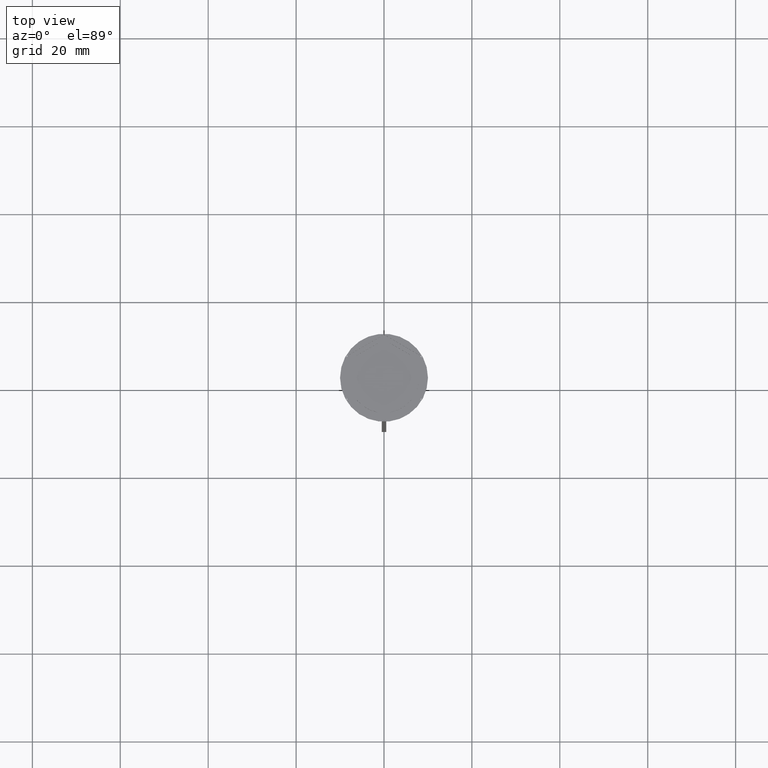
[diagram: clean part render]
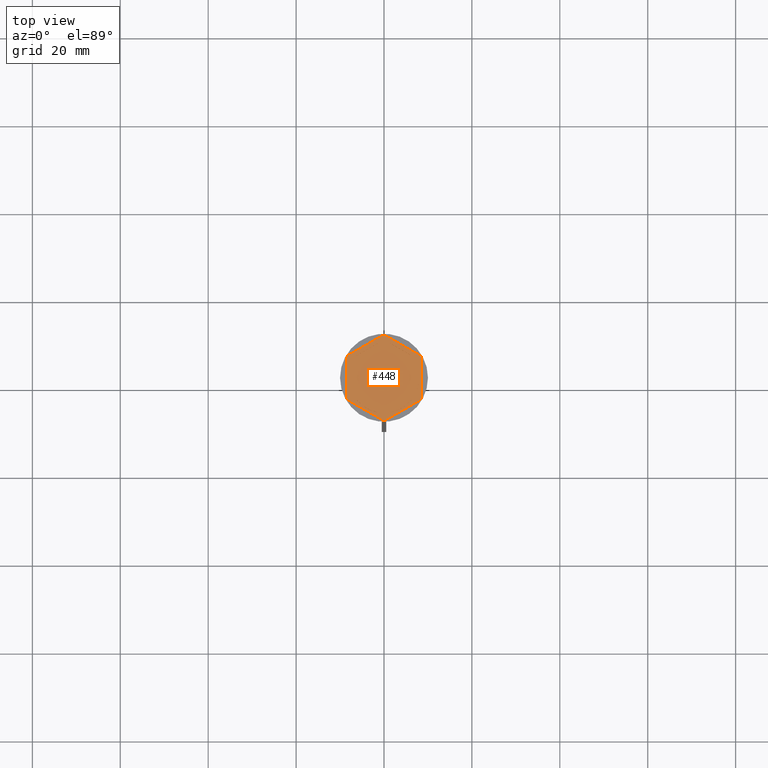
[diagram: same view with one face highlighted and labeled with its STEP entity id]
A machine part, top view. The second image highlights one B-rep face of the part: STEP entity #448.
In plain terms, the highlighted planar face has unit normal (0, 0, 1).
Its self-contained STEP definition (entity closure, byte-faithful):
#18 = ORIENTED_EDGE ( 'NONE', *, *, #1645, .F. ) ;
#22 = DIRECTION ( 'NONE',  ( 1.000000000000000000, 2.486899575160350651E-14, 0.000000000000000000 ) ) ;
#33 = CARTESIAN_POINT ( 'NONE',  ( 0.000000000000000000, 0.000000000000000000, -1.000000000000000000 ) ) ;
#50 = VECTOR ( 'NONE', #1621, 1000.000000000000114 ) ;
#53 = VECTOR ( 'NONE', #269, 1000.000000000000000 ) ;
#54 = VECTOR ( 'NONE', #1837, 1000.000000000000000 ) ;
#63 = VERTEX_POINT ( 'NONE', #198 ) ;
#64 = DIRECTION ( 'NONE',  ( -0.000000000000000000, -0.000000000000000000, -1.000000000000000000 ) ) ;
#91 = VECTOR ( 'NONE', #1137, 1000.000000000000000 ) ;
#100 = CARTESIAN_POINT ( 'NONE',  ( 0.000000000000000000, 0.000000000000000000, -1.000000000000000000 ) ) ;
#128 = AXIS2_PLACEMENT_3D ( 'NONE', #2612, #956, #1153 ) ;
#129 = LINE ( 'NONE', #1378, #1308 ) ;
#135 = VERTEX_POINT ( 'NONE', #916 ) ;
#146 = CARTESIAN_POINT ( 'NONE',  ( 0.000000000000000000, 0.000000000000000000, -1.000000000000000000 ) ) ;
#154 = CARTESIAN_POINT ( 'NONE',  ( 0.000000000000000000, 0.000000000000000000, -1.000000000000000000 ) ) ;
#159 = EDGE_CURVE ( 'NONE', #582, #413, #2114, .T. ) ;
#168 = LINE ( 'NONE', #1063, #2597 ) ;
#169 = CIRCLE ( 'NONE', #875, 8.000000000000000000 ) ;
#173 = DIRECTION ( 'NONE',  ( -2.003086131649545704E-16, -1.000000000000000000, 0.000000000000000000 ) ) ;
#180 = CARTESIAN_POINT ( 'NONE',  ( 6.160912690248237844, 5.103249437675785316, -1.000000000000000888 ) ) ;
#194 = FACE_OUTER_BOUND ( 'NONE', #580, .T. ) ;
#198 = CARTESIAN_POINT ( 'NONE',  ( 8.500000000000000000, -4.673328578219146934, -1.000000000000000000 ) ) ;
#226 = DIRECTION ( 'NONE',  ( -0.8660254037844387076, -0.4999999999999997780, 0.000000000000000000 ) ) ;
#230 = CARTESIAN_POINT ( 'NONE',  ( 7.500000000000000000, -4.330127018922195425, -1.000000000000000888 ) ) ;
#240 = CARTESIAN_POINT ( 'NONE',  ( -8.000000000000000000, 0.000000000000000000, -1.000000000000000000 ) ) ;
#269 = DIRECTION ( 'NONE',  ( 0.000000000000000000, -1.000000000000000000, 0.000000000000000000 ) ) ;
#274 = CARTESIAN_POINT ( 'NONE',  ( -8.500000000000000000, 4.673328578219146934, -1.000000000000000000 ) ) ;
#285 = EDGE_CURVE ( 'NONE', #509, #946, #129, .T. ) ;
#286 = DIRECTION ( 'NONE',  ( 0.000000000000000000, 0.000000000000000000, 1.000000000000000000 ) ) ;
#288 = VERTEX_POINT ( 'NONE', #550 ) ;
#297 = ORIENTED_EDGE ( 'NONE', *, *, #319, .F. ) ;
#308 = DIRECTION ( 'NONE',  ( 1.000000000000000000, 0.000000000000000000, 0.000000000000000000 ) ) ;
#309 = ORIENTED_EDGE ( 'NONE', *, *, #616, .F. ) ;
#319 = EDGE_CURVE ( 'NONE', #1258, #897, #472, .T. ) ;
#340 = AXIS2_PLACEMENT_3D ( 'NONE', #1908, #1564, #2316 ) ;
#356 = CARTESIAN_POINT ( 'NONE',  ( 0.000000000000000000, 9.814954576223636096, -1.000000000000000000 ) ) ;
#381 = CARTESIAN_POINT ( 'NONE',  ( 8.500000000000000000, -4.907477288111818936, -1.000000000000000000 ) ) ;
#403 = ORIENTED_EDGE ( 'NONE', *, *, #2150, .F. ) ;
#404 = DIRECTION ( 'NONE',  ( 1.000000000000000000, 0.000000000000000000, 0.000000000000000000 ) ) ;
#411 = EDGE_CURVE ( 'NONE', #869, #2223, #1092, .T. ) ;
#413 = VERTEX_POINT ( 'NONE', #180 ) ;
#415 = ORIENTED_EDGE ( 'NONE', *, *, #2377, .F. ) ;
#423 = VERTEX_POINT ( 'NONE', #987 ) ;
#428 = LINE ( 'NONE', #230, #972 ) ;
#431 = EDGE_LOOP ( 'NONE', ( #462, #1863 ) ) ;
#434 = ORIENTED_EDGE ( 'NONE', *, *, #1601, .T. ) ;
#441 = DIRECTION ( 'NONE',  ( -0.000000000000000000, -0.000000000000000000, -1.000000000000000000 ) ) ;
#442 = CIRCLE ( 'NONE', #1875, 9.699999999999990408 ) ;
#445 = CIRCLE ( 'NONE', #1326, 9.699999999999990408 ) ;
#448 = ADVANCED_FACE ( 'NONE', ( #1040, #1642, #2428, #772, #2639, #1248, #194 ), #1854, .T. ) ;
#460 = CARTESIAN_POINT ( 'NONE',  ( -6.160912690248237844, -5.103249437675787092, -1.000000000000000888 ) ) ;
#462 = ORIENTED_EDGE ( 'NONE', *, *, #1413, .F. ) ;
#472 = CIRCLE ( 'NONE', #128, 9.699999999999990408 ) ;
#475 = VERTEX_POINT ( 'NONE', #1615 ) ;
#483 = DIRECTION ( 'NONE',  ( 0.8660254037844387076, -0.4999999999999998890, 0.000000000000000000 ) ) ;
#484 = CARTESIAN_POINT ( 'NONE',  ( -7.500000000000000000, 4.330127018922190985, -1.000000000000000888 ) ) ;
#509 = VERTEX_POINT ( 'NONE', #2488 ) ;
#517 = EDGE_CURVE ( 'NONE', #413, #582, #169, .T. ) ;
#526 = AXIS2_PLACEMENT_3D ( 'NONE', #689, #286, #308 ) ;
#550 = CARTESIAN_POINT ( 'NONE',  ( 7.500000000000000000, -2.783882181415009427, -1.000000000000000888 ) ) ;
#556 = VERTEX_POINT ( 'NONE', #2081 ) ;
#558 = EDGE_CURVE ( 'NONE', #475, #2368, #1059, .T. ) ;
#562 = CARTESIAN_POINT ( 'NONE',  ( 6.160912690248236068, -5.103249437675787981, -1.000000000000000888 ) ) ;
#563 = CARTESIAN_POINT ( 'NONE',  ( -7.500000000000000000, 2.783882181415010759, -1.000000000000000888 ) ) ;
#564 = CIRCLE ( 'NONE', #1616, 8.000000000000000000 ) ;
#569 = CIRCLE ( 'NONE', #667, 9.699999999999990408 ) ;
#576 = CARTESIAN_POINT ( 'NONE',  ( -0.2027787310304044188, -9.697880221277303647, -1.000000000000000000 ) ) ;
#580 = EDGE_LOOP ( 'NONE', ( #1251, #2313, #1611, #2438, #724, #403, #2159, #297, #434, #415, #2099, #2116 ) ) ;
#582 = VERTEX_POINT ( 'NONE', #1485 ) ;
#584 = DIRECTION ( 'NONE',  ( 1.000000000000000000, 0.000000000000000000, -0.000000000000000000 ) ) ;
#598 = DIRECTION ( 'NONE',  ( 1.000000000000000000, 0.000000000000000000, 0.000000000000000000 ) ) ;
#610 = CARTESIAN_POINT ( 'NONE',  ( -0.2027787310304009494, 9.697880221277303647, -1.000000000000000000 ) ) ;
#616 = EDGE_CURVE ( 'NONE', #1119, #1421, #1529, .T. ) ;
#654 = DIRECTION ( 'NONE',  ( 1.000000000000000000, 0.000000000000000000, 0.000000000000000000 ) ) ;
#667 = AXIS2_PLACEMENT_3D ( 'NONE', #2318, #441, #1677 ) ;
#679 = LINE ( 'NONE', #2545, #53 ) ;
#689 = CARTESIAN_POINT ( 'NONE',  ( 0.000000000000000000, 0.000000000000000000, -1.000000000000000000 ) ) ;
#691 = VECTOR ( 'NONE', #483, 1000.000000000000000 ) ;
#697 = EDGE_LOOP ( 'NONE', ( #2333, #2172 ) ) ;
#703 = AXIS2_PLACEMENT_3D ( 'NONE', #2494, #2077, #1052 ) ;
#713 = ORIENTED_EDGE ( 'NONE', *, *, #1968, .F. ) ;
#724 = ORIENTED_EDGE ( 'NONE', *, *, #1169, .T. ) ;
#746 = VECTOR ( 'NONE', #2269, 999.9999999999998863 ) ;
#772 = FACE_BOUND ( 'NONE', #431, .T. ) ;
#784 = VERTEX_POINT ( 'NONE', #1168 ) ;
#803 = VERTEX_POINT ( 'NONE', #844 ) ;
#844 = CARTESIAN_POINT ( 'NONE',  ( -8.297221268969593666, 5.024551643058155825, -1.000000000000000000 ) ) ;
#845 = CARTESIAN_POINT ( 'NONE',  ( 0.000000000000000000, 0.000000000000000000, -1.000000000000000000 ) ) ;
#867 = CARTESIAN_POINT ( 'NONE',  ( 7.500000000000001776, 4.330127018922192761, -1.000000000000000888 ) ) ;
#869 = VERTEX_POINT ( 'NONE', #2493 ) ;
#875 = AXIS2_PLACEMENT_3D ( 'NONE', #1302, #1689, #952 ) ;
#884 = CIRCLE ( 'NONE', #2006, 9.699999999999990408 ) ;
#897 = VERTEX_POINT ( 'NONE', #2350 ) ;
#909 = EDGE_LOOP ( 'NONE', ( #1469, #1299 ) ) ;
#916 = CARTESIAN_POINT ( 'NONE',  ( -1.339087309751759047, 7.887131619090796519, -1.000000000000000888 ) ) ;
#924 = EDGE_LOOP ( 'NONE', ( #2475, #713 ) ) ;
#940 = DIRECTION ( 'NONE',  ( -0.000000000000000000, -0.000000000000000000, -1.000000000000000000 ) ) ;
#946 = VERTEX_POINT ( 'NONE', #460 ) ;
#952 = DIRECTION ( 'NONE',  ( 1.000000000000000000, 0.000000000000000000, 0.000000000000000000 ) ) ;
#956 = DIRECTION ( 'NONE',  ( -0.000000000000000000, -0.000000000000000000, -1.000000000000000000 ) ) ;
#958 = EDGE_CURVE ( 'NONE', #135, #1240, #1963, .T. ) ;
#967 = VECTOR ( 'NONE', #226, 1000.000000000000114 ) ;
#972 = VECTOR ( 'NONE', #173, 1000.000000000000000 ) ;
#979 = DIRECTION ( 'NONE',  ( 1.000000000000000000, 0.000000000000000000, 0.000000000000000000 ) ) ;
#987 = CARTESIAN_POINT ( 'NONE',  ( 8.297221268969593666, -5.024551643058152273, -1.000000000000000000 ) ) ;
#1016 = DIRECTION ( 'NONE',  ( 0.8660254037844387076, -0.4999999999999997780, 0.000000000000000000 ) ) ;
#1023 = DIRECTION ( 'NONE',  ( -0.000000000000000000, -0.000000000000000000, -1.000000000000000000 ) ) ;
#1030 = VERTEX_POINT ( 'NONE', #576 ) ;
#1040 = FACE_BOUND ( 'NONE', #697, .T. ) ;
#1047 = CARTESIAN_POINT ( 'NONE',  ( -6.160912690248241397, 5.103249437675783540, -1.000000000000000888 ) ) ;
#1052 = DIRECTION ( 'NONE',  ( 1.000000000000000000, 0.000000000000000000, 0.000000000000000000 ) ) ;
#1059 = LINE ( 'NONE', #1513, #91 ) ;
#1060 = CARTESIAN_POINT ( 'NONE',  ( -8.500000000000000000, -4.907477288111819824, -1.000000000000000000 ) ) ;
#1063 = CARTESIAN_POINT ( 'NONE',  ( 8.729740977282959667E-16, -9.814954576223637872, -1.000000000000000000 ) ) ;
#1092 = CIRCLE ( 'NONE', #1610, 8.000000000000000000 ) ;
#1100 = ORIENTED_EDGE ( 'NONE', *, *, #1369, .F. ) ;
#1112 = DIRECTION ( 'NONE',  ( 1.000000000000000000, 0.000000000000000000, 0.000000000000000000 ) ) ;
#1119 = VERTEX_POINT ( 'NONE', #563 ) ;
#1137 = DIRECTION ( 'NONE',  ( -0.8660254037844388186, 0.4999999999999997224, 0.000000000000000000 ) ) ;
#1144 = CIRCLE ( 'NONE', #2637, 9.699999999999990408 ) ;
#1152 = EDGE_CURVE ( 'NONE', #2223, #869, #1585, .T. ) ;
#1153 = DIRECTION ( 'NONE',  ( 1.000000000000000000, 0.000000000000000000, 0.000000000000000000 ) ) ;
#1168 = CARTESIAN_POINT ( 'NONE',  ( 0.2027787310304044188, -9.697880221277303647, -1.000000000000000000 ) ) ;
#1169 = EDGE_CURVE ( 'NONE', #1924, #803, #2224, .T. ) ;
#1184 = EDGE_CURVE ( 'NONE', #784, #423, #168, .T. ) ;
#1188 = DIRECTION ( 'NONE',  ( 0.000000000000000000, 0.000000000000000000, 1.000000000000000000 ) ) ;
#1199 = DIRECTION ( 'NONE',  ( 0.000000000000000000, 0.000000000000000000, 1.000000000000000000 ) ) ;
#1240 = VERTEX_POINT ( 'NONE', #1047 ) ;
#1248 = FACE_BOUND ( 'NONE', #924, .T. ) ;
#1250 = CARTESIAN_POINT ( 'NONE',  ( 0.2027787310304000890, 9.697880221277303647, -1.000000000000000000 ) ) ;
#1251 = ORIENTED_EDGE ( 'NONE', *, *, #1977, .T. ) ;
#1258 = VERTEX_POINT ( 'NONE', #2460 ) ;
#1299 = ORIENTED_EDGE ( 'NONE', *, *, #1152, .F. ) ;
#1302 = CARTESIAN_POINT ( 'NONE',  ( 0.000000000000000000, 0.000000000000000000, -1.000000000000000000 ) ) ;
#1307 = LINE ( 'NONE', #484, #2131 ) ;
#1308 = VECTOR ( 'NONE', #1974, 1000.000000000000114 ) ;
#1319 = CIRCLE ( 'NONE', #703, 8.000000000000000000 ) ;
#1326 = AXIS2_PLACEMENT_3D ( 'NONE', #146, #1830, #979 ) ;
#1369 = EDGE_CURVE ( 'NONE', #556, #1119, #1307, .T. ) ;
#1378 = CARTESIAN_POINT ( 'NONE',  ( -7.500000000000000000, -4.330127018922193649, -1.000000000000000888 ) ) ;
#1401 = VERTEX_POINT ( 'NONE', #2157 ) ;
#1413 = EDGE_CURVE ( 'NONE', #946, #509, #564, .T. ) ;
#1420 = ORIENTED_EDGE ( 'NONE', *, *, #2038, .F. ) ;
#1421 = VERTEX_POINT ( 'NONE', #240 ) ;
#1431 = EDGE_CURVE ( 'NONE', #2049, #897, #679, .T. ) ;
#1461 = DIRECTION ( 'NONE',  ( 0.000000000000000000, 0.000000000000000000, 1.000000000000000000 ) ) ;
#1469 = ORIENTED_EDGE ( 'NONE', *, *, #411, .F. ) ;
#1485 = CARTESIAN_POINT ( 'NONE',  ( 1.339087309751760380, 7.887131619090794743, -1.000000000000000888 ) ) ;
#1498 = VECTOR ( 'NONE', #1016, 1000.000000000000114 ) ;
#1513 = CARTESIAN_POINT ( 'NONE',  ( 8.500000000000000000, 4.907477288111819824, -1.000000000000000000 ) ) ;
#1529 = CIRCLE ( 'NONE', #340, 8.000000000000000000 ) ;
#1564 = DIRECTION ( 'NONE',  ( 0.000000000000000000, 0.000000000000000000, 1.000000000000000000 ) ) ;
#1585 = LINE ( 'NONE', #1808, #50 ) ;
#1601 = EDGE_CURVE ( 'NONE', #1258, #1030, #1643, .T. ) ;
#1610 = AXIS2_PLACEMENT_3D ( 'NONE', #154, #1199, #404 ) ;
#1611 = ORIENTED_EDGE ( 'NONE', *, *, #558, .T. ) ;
#1615 = CARTESIAN_POINT ( 'NONE',  ( 8.297221268969593666, 5.024551643058155825, -1.000000000000000000 ) ) ;
#1616 = AXIS2_PLACEMENT_3D ( 'NONE', #1915, #2517, #2320 ) ;
#1621 = DIRECTION ( 'NONE',  ( -0.8660254037844387076, -0.4999999999999997780, 0.000000000000000000 ) ) ;
#1628 = VERTEX_POINT ( 'NONE', #1842 ) ;
#1642 = FACE_BOUND ( 'NONE', #2587, .T. ) ;
#1643 = LINE ( 'NONE', #1060, #1498 ) ;
#1645 = EDGE_CURVE ( 'NONE', #288, #1401, #2215, .T. ) ;
#1651 = LINE ( 'NONE', #2311, #746 ) ;
#1656 = AXIS2_PLACEMENT_3D ( 'NONE', #1841, #1188, #584 ) ;
#1677 = DIRECTION ( 'NONE',  ( 1.000000000000000000, 0.000000000000000000, 0.000000000000000000 ) ) ;
#1689 = DIRECTION ( 'NONE',  ( 0.000000000000000000, 0.000000000000000000, 1.000000000000000000 ) ) ;
#1762 = DIRECTION ( 'NONE',  ( 0.000000000000000000, 1.000000000000000000, 0.000000000000000000 ) ) ;
#1808 = CARTESIAN_POINT ( 'NONE',  ( -1.301042606982605321E-15, -8.660254037844387298, -1.000000000000000888 ) ) ;
#1828 = EDGE_CURVE ( 'NONE', #1924, #2368, #442, .T. ) ;
#1830 = DIRECTION ( 'NONE',  ( -0.000000000000000000, -0.000000000000000000, -1.000000000000000000 ) ) ;
#1837 = DIRECTION ( 'NONE',  ( 0.000000000000000000, 1.000000000000000000, 0.000000000000000000 ) ) ;
#1841 = CARTESIAN_POINT ( 'NONE',  ( 0.000000000000000000, 0.000000000000000000, -1.000000000000000000 ) ) ;
#1842 = CARTESIAN_POINT ( 'NONE',  ( 8.500000000000000000, 4.673328578219146934, -1.000000000000000000 ) ) ;
#1854 = PLANE ( 'NONE',  #1656 ) ;
#1863 = ORIENTED_EDGE ( 'NONE', *, *, #285, .F. ) ;
#1868 = CARTESIAN_POINT ( 'NONE',  ( 0.000000000000000000, 0.000000000000000000, -1.000000000000000000 ) ) ;
#1875 = AXIS2_PLACEMENT_3D ( 'NONE', #33, #64, #22 ) ;
#1908 = CARTESIAN_POINT ( 'NONE',  ( 0.000000000000000000, 0.000000000000000000, -1.000000000000000000 ) ) ;
#1912 = EDGE_CURVE ( 'NONE', #1421, #556, #1319, .T. ) ;
#1915 = CARTESIAN_POINT ( 'NONE',  ( 0.000000000000000000, 0.000000000000000000, -1.000000000000000000 ) ) ;
#1924 = VERTEX_POINT ( 'NONE', #610 ) ;
#1926 = AXIS2_PLACEMENT_3D ( 'NONE', #1868, #1461, #598 ) ;
#1949 = EDGE_CURVE ( 'NONE', #63, #423, #884, .T. ) ;
#1963 = CIRCLE ( 'NONE', #526, 8.000000000000000000 ) ;
#1968 = EDGE_CURVE ( 'NONE', #1240, #135, #1651, .T. ) ;
#1974 = DIRECTION ( 'NONE',  ( -0.8660254037844384856, 0.5000000000000002220, 0.000000000000000000 ) ) ;
#1977 = EDGE_CURVE ( 'NONE', #63, #1628, #2660, .T. ) ;
#2006 = AXIS2_PLACEMENT_3D ( 'NONE', #845, #1023, #654 ) ;
#2038 = EDGE_CURVE ( 'NONE', #1401, #288, #428, .T. ) ;
#2049 = VERTEX_POINT ( 'NONE', #274 ) ;
#2077 = DIRECTION ( 'NONE',  ( 0.000000000000000000, 0.000000000000000000, 1.000000000000000000 ) ) ;
#2081 = CARTESIAN_POINT ( 'NONE',  ( -7.500000000000000000, -2.783882181415010759, -1.000000000000000888 ) ) ;
#2099 = ORIENTED_EDGE ( 'NONE', *, *, #1184, .T. ) ;
#2114 = LINE ( 'NONE', #867, #691 ) ;
#2116 = ORIENTED_EDGE ( 'NONE', *, *, #1949, .F. ) ;
#2131 = VECTOR ( 'NONE', #1762, 1000.000000000000000 ) ;
#2150 = EDGE_CURVE ( 'NONE', #2049, #803, #1144, .T. ) ;
#2157 = CARTESIAN_POINT ( 'NONE',  ( 7.500000000000001776, 2.783882181415006762, -1.000000000000000888 ) ) ;
#2159 = ORIENTED_EDGE ( 'NONE', *, *, #1431, .T. ) ;
#2172 = ORIENTED_EDGE ( 'NONE', *, *, #159, .F. ) ;
#2210 = EDGE_CURVE ( 'NONE', #475, #1628, #445, .T. ) ;
#2215 = CIRCLE ( 'NONE', #1926, 8.000000000000000000 ) ;
#2220 = EDGE_LOOP ( 'NONE', ( #309, #1100, #2631 ) ) ;
#2223 = VERTEX_POINT ( 'NONE', #562 ) ;
#2224 = LINE ( 'NONE', #356, #967 ) ;
#2269 = DIRECTION ( 'NONE',  ( 0.8660254037844387076, 0.5000000000000001110, -0.000000000000000000 ) ) ;
#2311 = CARTESIAN_POINT ( 'NONE',  ( 8.673617379884035472E-16, 8.660254037844385522, -1.000000000000000888 ) ) ;
#2313 = ORIENTED_EDGE ( 'NONE', *, *, #2210, .F. ) ;
#2316 = DIRECTION ( 'NONE',  ( 1.000000000000000000, 0.000000000000000000, 0.000000000000000000 ) ) ;
#2318 = CARTESIAN_POINT ( 'NONE',  ( 0.000000000000000000, 0.000000000000000000, -1.000000000000000000 ) ) ;
#2320 = DIRECTION ( 'NONE',  ( 1.000000000000000000, 0.000000000000000000, 0.000000000000000000 ) ) ;
#2333 = ORIENTED_EDGE ( 'NONE', *, *, #517, .F. ) ;
#2350 = CARTESIAN_POINT ( 'NONE',  ( -8.500000000000000000, -4.673328578219146934, -1.000000000000000000 ) ) ;
#2368 = VERTEX_POINT ( 'NONE', #1250 ) ;
#2377 = EDGE_CURVE ( 'NONE', #784, #1030, #569, .T. ) ;
#2428 = FACE_BOUND ( 'NONE', #909, .T. ) ;
#2438 = ORIENTED_EDGE ( 'NONE', *, *, #1828, .F. ) ;
#2460 = CARTESIAN_POINT ( 'NONE',  ( -8.297221268969593666, -5.024551643058157602, -1.000000000000000000 ) ) ;
#2475 = ORIENTED_EDGE ( 'NONE', *, *, #958, .F. ) ;
#2488 = CARTESIAN_POINT ( 'NONE',  ( -1.339087309751766819, -7.887131619090794743, -1.000000000000000888 ) ) ;
#2493 = CARTESIAN_POINT ( 'NONE',  ( 1.339087309751762156, -7.887131619090794743, -1.000000000000000888 ) ) ;
#2494 = CARTESIAN_POINT ( 'NONE',  ( 0.000000000000000000, 0.000000000000000000, -1.000000000000000000 ) ) ;
#2517 = DIRECTION ( 'NONE',  ( 0.000000000000000000, 0.000000000000000000, 1.000000000000000000 ) ) ;
#2545 = CARTESIAN_POINT ( 'NONE',  ( -8.500000000000000000, 4.907477288111818936, -1.000000000000000000 ) ) ;
#2587 = EDGE_LOOP ( 'NONE', ( #18, #1420 ) ) ;
#2597 = VECTOR ( 'NONE', #2647, 1000.000000000000227 ) ;
#2612 = CARTESIAN_POINT ( 'NONE',  ( 0.000000000000000000, 0.000000000000000000, -1.000000000000000000 ) ) ;
#2631 = ORIENTED_EDGE ( 'NONE', *, *, #1912, .F. ) ;
#2637 = AXIS2_PLACEMENT_3D ( 'NONE', #100, #940, #1112 ) ;
#2639 = FACE_BOUND ( 'NONE', #2220, .T. ) ;
#2647 = DIRECTION ( 'NONE',  ( 0.8660254037844385966, 0.5000000000000000000, 0.000000000000000000 ) ) ;
#2660 = LINE ( 'NONE', #381, #54 ) ;